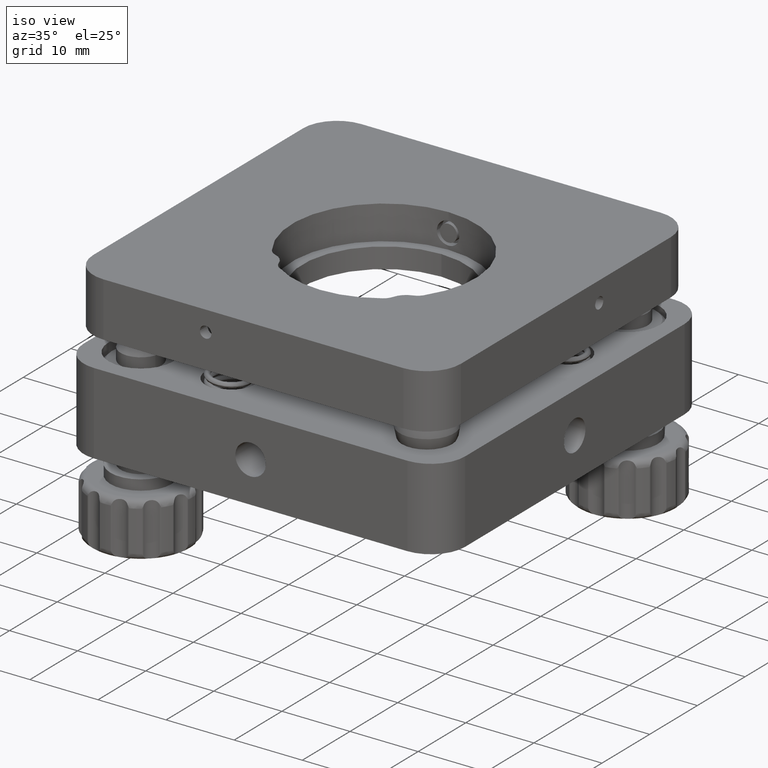
[diagram: clean part render]
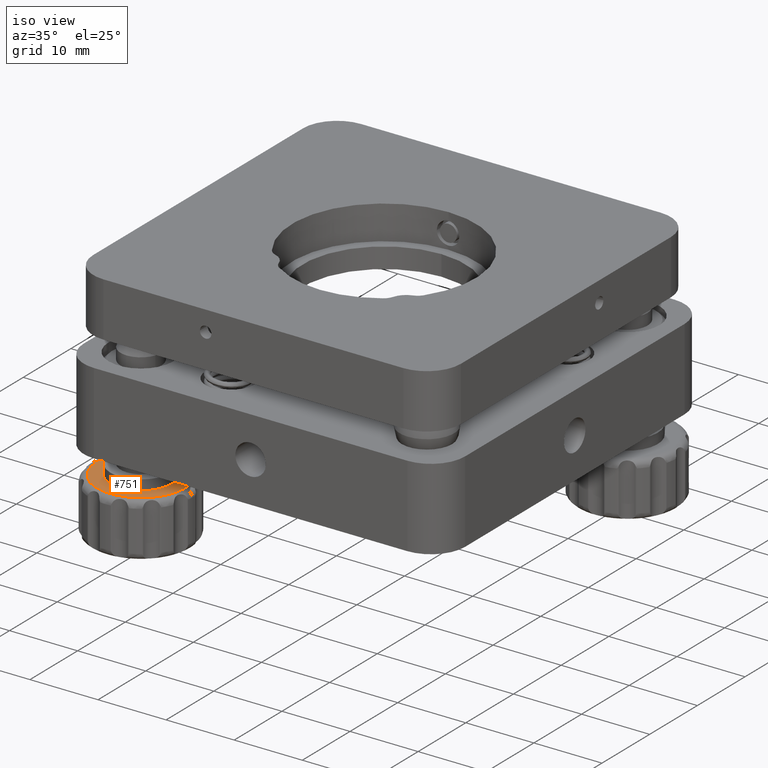
[diagram: same view with one face highlighted and labeled with its STEP entity id]
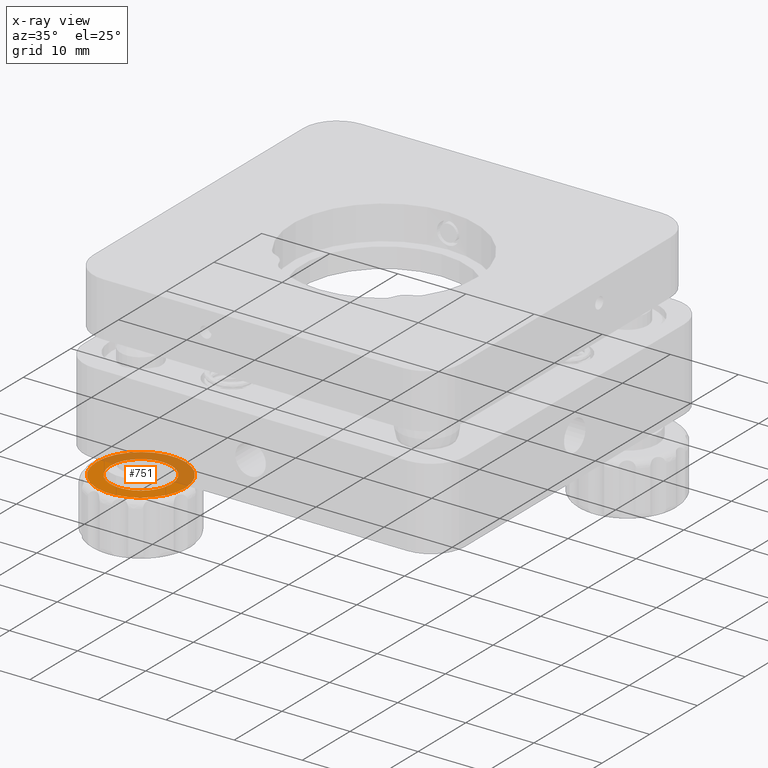
[diagram: x-ray of the same camera — body ghosted, the highlighted face saturated]
A machine part, iso view. The second image highlights one B-rep face of the part: STEP entity #751.
The next image is the same camera in x-ray: the body ghosted, the highlighted face saturated — about 46% of this face is hidden behind the body in this view.
In plain terms, the highlighted planar face has unit normal (-0, 0, -1).
Its self-contained STEP definition (entity closure, byte-faithful):
#70 = VERTEX_POINT ( 'NONE', #1347 ) ;
#751 = ADVANCED_FACE ( 'NONE', ( #3001, #14105 ), #16852, .F. ) ;
#854 = DIRECTION ( 'NONE',  ( -1.000000000000000000, 3.885780586188064700E-016, 2.078105408777546700E-017 ) ) ;
#894 = EDGE_CURVE ( 'NONE', #2587, #16211, #16599, .T. ) ;
#939 = ORIENTED_EDGE ( 'NONE', *, *, #2384, .F. ) ;
#1347 = CARTESIAN_POINT ( 'NONE',  ( -27.50000000000000400, -20.99999999999999300, -19.32911768350748400 ) ) ;
#2133 = ORIENTED_EDGE ( 'NONE', *, *, #15592, .T. ) ;
#2134 = CIRCLE ( 'NONE', #11662, 4.500000000000000900 ) ;
#2384 = EDGE_CURVE ( 'NONE', #16211, #2587, #2134, .T. ) ;
#2587 = VERTEX_POINT ( 'NONE', #11370 ) ;
#3001 = FACE_OUTER_BOUND ( 'NONE', #13339, .T. ) ;
#3122 = VERTEX_POINT ( 'NONE', #10765 ) ;
#3572 = CARTESIAN_POINT ( 'NONE',  ( -21.00000000000000400, -20.99999999999999600, -19.32911768350748400 ) ) ;
#3633 = DIRECTION ( 'NONE',  ( -1.000000000000000000, 5.337610695313253400E-016, 0.0000000000000000000 ) ) ;
#3968 = CARTESIAN_POINT ( 'NONE',  ( -21.00000000000000400, -20.99999999999999600, -19.32911768350748400 ) ) ;
#5060 = DIRECTION ( 'NONE',  ( 2.078105408777968900E-017, -2.431451621834128600E-016, 1.000000000000000000 ) ) ;
#5157 = DIRECTION ( 'NONE',  ( -1.000000000000000000, -7.709882115452474200E-016, 0.0000000000000000000 ) ) ;
#5374 = ORIENTED_EDGE ( 'NONE', *, *, #7128, .T. ) ;
#5462 = CARTESIAN_POINT ( 'NONE',  ( -21.00000000000000400, -20.99999999999999600, -19.32911768350748400 ) ) ;
#5588 = DIRECTION ( 'NONE',  ( 2.078105408777968900E-017, -2.431451621834128600E-016, 1.000000000000000000 ) ) ;
#5779 = CIRCLE ( 'NONE', #16267, 6.499999999999999100 ) ;
#6272 = ORIENTED_EDGE ( 'NONE', *, *, #894, .F. ) ;
#7128 = EDGE_CURVE ( 'NONE', #70, #3122, #9830, .T. ) ;
#8840 = AXIS2_PLACEMENT_3D ( 'NONE', #3572, #16769, #3633 ) ;
#9830 = CIRCLE ( 'NONE', #8840, 6.499999999999999100 ) ;
#10765 = CARTESIAN_POINT ( 'NONE',  ( -14.50000000000000400, -20.99999999999999600, -19.32911768350748400 ) ) ;
#10795 = AXIS2_PLACEMENT_3D ( 'NONE', #11700, #5060, #17383 ) ;
#11370 = CARTESIAN_POINT ( 'NONE',  ( -25.50000000000000400, -20.99999999999999300, -19.32911768350748400 ) ) ;
#11580 = DIRECTION ( 'NONE',  ( -2.078105408777537200E-017, 2.431451621834129100E-016, -1.000000000000000000 ) ) ;
#11662 = AXIS2_PLACEMENT_3D ( 'NONE', #3968, #14429, #5157 ) ;
#11700 = CARTESIAN_POINT ( 'NONE',  ( -21.00000000000000400, -20.99999999999999600, -19.32911768350748400 ) ) ;
#12309 = DIRECTION ( 'NONE',  ( -1.000000000000000000, 5.337610695313253400E-016, 0.0000000000000000000 ) ) ;
#12458 = EDGE_LOOP ( 'NONE', ( #6272, #939 ) ) ;
#12554 = AXIS2_PLACEMENT_3D ( 'NONE', #12856, #11580, #854 ) ;
#12856 = CARTESIAN_POINT ( 'NONE',  ( -21.00000000000000400, -20.99999999999999600, -19.32911768350748400 ) ) ;
#13339 = EDGE_LOOP ( 'NONE', ( #5374, #2133 ) ) ;
#13402 = CARTESIAN_POINT ( 'NONE',  ( -16.50000000000000400, -20.99999999999996800, -19.32911768350748400 ) ) ;
#14105 = FACE_BOUND ( 'NONE', #12458, .T. ) ;
#14429 = DIRECTION ( 'NONE',  ( 2.078105408777968900E-017, -2.431451621834128600E-016, 1.000000000000000000 ) ) ;
#15592 = EDGE_CURVE ( 'NONE', #3122, #70, #5779, .T. ) ;
#16211 = VERTEX_POINT ( 'NONE', #13402 ) ;
#16267 = AXIS2_PLACEMENT_3D ( 'NONE', #5462, #5588, #12309 ) ;
#16599 = CIRCLE ( 'NONE', #10795, 4.500000000000000900 ) ;
#16769 = DIRECTION ( 'NONE',  ( 2.078105408777968900E-017, -2.431451621834128600E-016, 1.000000000000000000 ) ) ;
#16852 = PLANE ( 'NONE',  #12554 ) ;
#17383 = DIRECTION ( 'NONE',  ( -1.000000000000000000, 7.709882115452474200E-016, 0.0000000000000000000 ) ) ;